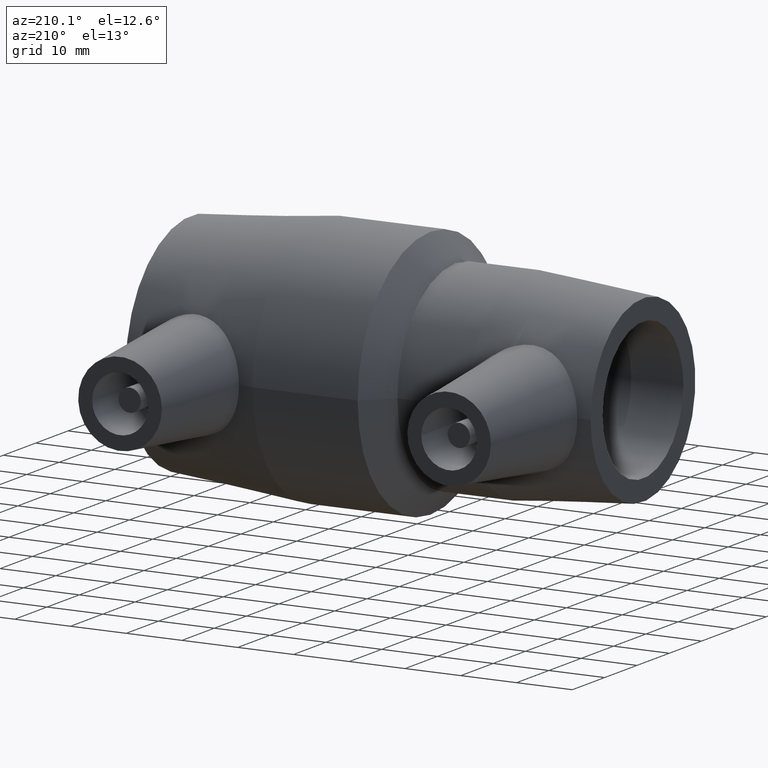
[diagram: clean part render]
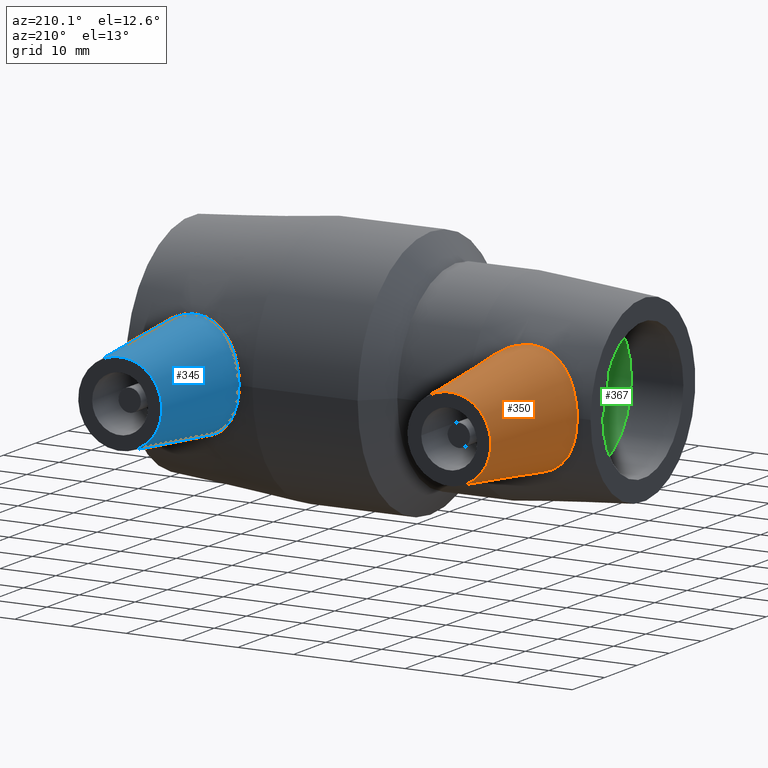
[diagram: same view with three faces highlighted in distinct colors, each labeled with its STEP entity id]
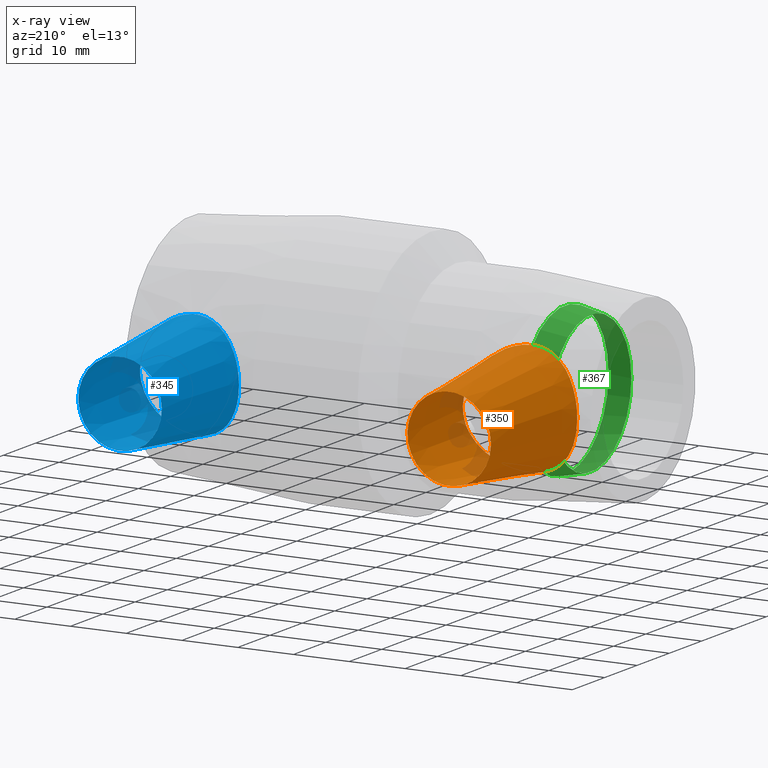
[diagram: x-ray of the same camera — body ghosted, the three highlighted faces saturated]
A machine part, auxiliary view with three faces highlighted in distinct colors.
The next image is the same camera in x-ray (body ghosted, the three faces saturated) — at least one of them is partly hidden behind the body in this view.
Their STEP definitions:

[orange] entity #350 — the highlighted conical surface has half-angle 6 deg.
#16=B_SPLINE_CURVE_WITH_KNOTS('',3,(#631,#632,#633,#634,#635,#636,#637,
#638),.UNSPECIFIED.,.F.,.F.,(4,2,2,4),(-1.20508613893983,-0.828158887300621,
-0.41407944365031,0.),.UNSPECIFIED.);
#17=B_SPLINE_CURVE_WITH_KNOTS('',3,(#640,#641,#642,#643,#644,#645,#646,
#647,#648,#649),.UNSPECIFIED.,.F.,.F.,(4,2,2,2,4),(1.20508613897965,1.22266936084449,
1.61717983438835,2.0116903079322,2.02927352979704),.UNSPECIFIED.);
#18=B_SPLINE_CURVE_WITH_KNOTS('',3,(#650,#651,#652,#653,#654,#655,#656,
#657,#658,#659,#660,#661,#662,#663,#664,#665,#666,#667,#668,#669,#670,#671,
#672,#673,#674,#675,#676,#677),.UNSPECIFIED.,.F.,.F.,(4,2,2,2,2,2,2,2,2,
2,2,2,2,4),(0.,0.184922280203359,0.369844560406719,0.739689120813437,1.11152690594763,
1.48336469108183,1.85520247621602,2.22704026135021,2.59688482175693,2.78180710196029,
2.96672938216365,3.38080882581396,3.79488826946427,4.17181552114325),
 .UNSPECIFIED.);
#20=CONICAL_SURFACE('',#394,7.5,6.);
#37=FACE_BOUND('',#122,.T.);
#80=FACE_OUTER_BOUND('',#121,.T.);
#121=EDGE_LOOP('',(#279));
#122=EDGE_LOOP('',(#280,#281,#282));
#172=CIRCLE('',#393,7.5);
#203=VERTEX_POINT('',#626);
#204=VERTEX_POINT('',#629);
#205=VERTEX_POINT('',#630);
#206=VERTEX_POINT('',#639);
#235=EDGE_CURVE('',#203,#203,#172,.T.);
#236=EDGE_CURVE('',#204,#205,#16,.T.);
#237=EDGE_CURVE('',#204,#206,#17,.T.);
#238=EDGE_CURVE('',#205,#206,#18,.T.);
#279=ORIENTED_EDGE('',*,*,#235,.T.);
#280=ORIENTED_EDGE('',*,*,#236,.F.);
#281=ORIENTED_EDGE('',*,*,#237,.T.);
#282=ORIENTED_EDGE('',*,*,#238,.F.);
#350=ADVANCED_FACE('',(#80,#37),#20,.T.);
#393=AXIS2_PLACEMENT_3D('',#627,#477,#478);
#394=AXIS2_PLACEMENT_3D('',#628,#479,#480);
#477=DIRECTION('center_axis',(0.,-1.,0.));
#478=DIRECTION('ref_axis',(1.,0.,0.));
#479=DIRECTION('center_axis',(0.,-1.,0.));
#480=DIRECTION('ref_axis',(1.,0.,0.));
#626=CARTESIAN_POINT('',(-35.85,39.,9.18485099360515E-16));
#627=CARTESIAN_POINT('Origin',(-28.35,39.,0.));
#628=CARTESIAN_POINT('Origin',(-28.35,39.,0.));
#629=CARTESIAN_POINT('',(-19.4999999999998,17.5248670279939,4.10841035573772));
#630=CARTESIAN_POINT('',(-28.9346274519194,13.8957836693557,10.1216895157762));
#631=CARTESIAN_POINT('Ctrl Pts',(-19.4999999999998,17.5248670279939,4.10841035573772));
#632=CARTESIAN_POINT('Ctrl Pts',(-20.0113032148422,17.2027997496098,5.29021012502884));
#633=CARTESIAN_POINT('Ctrl Pts',(-20.7438394017515,16.7560419521752,6.3488513312891));
#634=CARTESIAN_POINT('Ctrl Pts',(-22.4667457270617,15.8181165326031,8.11067382559636));
#635=CARTESIAN_POINT('Ctrl Pts',(-23.6067681733767,15.2516868985646,8.905522102556));
#636=CARTESIAN_POINT('Ctrl Pts',(-26.1503933843825,14.3304224070003,9.94552341413087));
#637=CARTESIAN_POINT('Ctrl Pts',(-27.5594052315259,13.9910632793358,10.1910911884238));
#638=CARTESIAN_POINT('Ctrl Pts',(-28.9346274519194,13.8957836693558,10.1216895157762));
#639=CARTESIAN_POINT('',(-19.4999999999998,17.5248670279939,-4.10841035573769));
#640=CARTESIAN_POINT('Ctrl Pts',(-19.4999999999998,17.5248670279939,4.10841035573772));
#641=CARTESIAN_POINT('Ctrl Pts',(-19.4761482942774,17.539891095365,4.05328075846208));
#642=CARTESIAN_POINT('Ctrl Pts',(-19.4527586338082,17.5546554690463,3.99789469175653));
#643=CARTESIAN_POINT('Ctrl Pts',(-18.9155962863665,17.8943902632744,2.69412405183218));
#644=CARTESIAN_POINT('Ctrl Pts',(-18.6504644693307,18.0728173312002,1.31503491181285));
#645=CARTESIAN_POINT('Ctrl Pts',(-18.6504644693307,18.0728173312002,-1.31503491181285));
#646=CARTESIAN_POINT('Ctrl Pts',(-18.9155962863665,17.8943902632744,-2.69412405183218));
#647=CARTESIAN_POINT('Ctrl Pts',(-19.4527586338082,17.5546554690463,-3.99789469175652));
#648=CARTESIAN_POINT('Ctrl Pts',(-19.4761482942774,17.539891095365,-4.05328075846206));
#649=CARTESIAN_POINT('Ctrl Pts',(-19.4999999999998,17.5248670279939,-4.10841035573769));
#650=CARTESIAN_POINT('Ctrl Pts',(-28.9346274519194,13.8957836693558,10.1216895157762));
#651=CARTESIAN_POINT('Ctrl Pts',(-29.5487830992986,13.8532330839438,10.0906956672461));
#652=CARTESIAN_POINT('Ctrl Pts',(-30.175940607223,13.8553959521025,9.99734311127611));
#653=CARTESIAN_POINT('Ctrl Pts',(-31.4080271085478,13.9496561313279,9.68134930795406));
#654=CARTESIAN_POINT('Ctrl Pts',(-32.0130152767465,14.0413585172837,9.45882111921406));
#655=CARTESIAN_POINT('Ctrl Pts',(-33.7338262792664,14.4078121514595,8.62223666664153));
#656=CARTESIAN_POINT('Ctrl Pts',(-34.7557667319442,14.771660454981,7.82998782160312));
#657=CARTESIAN_POINT('Ctrl Pts',(-36.3593899681928,15.431506581552,6.06784800442934));
#658=CARTESIAN_POINT('Ctrl Pts',(-37.0579677593027,15.7776926258145,4.96625058698677));
#659=CARTESIAN_POINT('Ctrl Pts',(-37.9919068033963,16.2618530085602,2.5528133989328));
#660=CARTESIAN_POINT('Ctrl Pts',(-38.2258892493699,16.3949237786254,1.23945928378065));
#661=CARTESIAN_POINT('Ctrl Pts',(-38.2258892493699,16.3949237786254,-1.23945928378065));
#662=CARTESIAN_POINT('Ctrl Pts',(-37.9919068033963,16.2618530085602,-2.5528133989328));
#663=CARTESIAN_POINT('Ctrl Pts',(-37.0579677593027,15.7776926258145,-4.96625058698676));
#664=CARTESIAN_POINT('Ctrl Pts',(-36.3593899681928,15.431506581552,-6.06784800442933));
#665=CARTESIAN_POINT('Ctrl Pts',(-34.7557667319442,14.771660454981,-7.82998782160312));
#666=CARTESIAN_POINT('Ctrl Pts',(-33.7338262792664,14.4078121514595,-8.62223666664153));
#667=CARTESIAN_POINT('Ctrl Pts',(-32.0130152767465,14.0413585172837,-9.45882111921405));
#668=CARTESIAN_POINT('Ctrl Pts',(-31.4080271085478,13.9496561313279,-9.68134930795406));
#669=CARTESIAN_POINT('Ctrl Pts',(-30.175940607223,13.8553959521025,-9.99734311127611));
#670=CARTESIAN_POINT('Ctrl Pts',(-29.5487830992986,13.8532330839438,-10.0906956672461));
#671=CARTESIAN_POINT('Ctrl Pts',(-27.5594052315259,13.9910632793358,-10.1910911884238));
#672=CARTESIAN_POINT('Ctrl Pts',(-26.1503933843825,14.3304224070003,-9.94552341413088));
#673=CARTESIAN_POINT('Ctrl Pts',(-23.6067681733767,15.2516868985646,-8.905522102556));
#674=CARTESIAN_POINT('Ctrl Pts',(-22.4667457270617,15.8181165326031,-8.11067382559636));
#675=CARTESIAN_POINT('Ctrl Pts',(-20.7438394016649,16.7560419522223,-6.34885133120051));
#676=CARTESIAN_POINT('Ctrl Pts',(-20.0113032159252,17.2027997489276,-5.29021012753199));
#677=CARTESIAN_POINT('Ctrl Pts',(-19.4999999999998,17.5248670279939,-4.10841035573769));

[blue] entity #345 — the highlighted conical surface has half-angle 5 deg.
#15=B_SPLINE_CURVE_WITH_KNOTS('',3,(#582,#583,#584,#585,#586,#587,#588,
#589,#590,#591,#592,#593,#594,#595,#596,#597,#598,#599,#600,#601,#602,#603,
#604,#605,#606,#607,#608,#609,#610,#611,#612,#613,#614,#615),
 .UNSPECIFIED.,.T.,.F.,(4,2,2,2,2,2,2,2,2,2,2,2,2,2,2,2,4),(0.,0.34921942886864,
0.69843885773728,1.05091588637607,1.40339291501485,1.75586994365364,2.10834697229243,
2.45756640116107,2.80678583002971,3.18980122872234,3.57281662741497,3.9445500905456,
4.31628355367624,4.68801701680687,5.0597504799375,5.44276587863013,5.82578127732276),
 .UNSPECIFIED.);
#19=CONICAL_SURFACE('',#385,7.5,5.);
#32=FACE_BOUND('',#112,.T.);
#75=FACE_OUTER_BOUND('',#111,.T.);
#111=EDGE_LOOP('',(#269));
#112=EDGE_LOOP('',(#270));
#168=CIRCLE('',#384,7.5);
#198=VERTEX_POINT('',#578);
#199=VERTEX_POINT('',#581);
#230=EDGE_CURVE('',#198,#198,#168,.T.);
#231=EDGE_CURVE('',#199,#199,#15,.T.);
#269=ORIENTED_EDGE('',*,*,#230,.T.);
#270=ORIENTED_EDGE('',*,*,#231,.F.);
#345=ADVANCED_FACE('',(#75,#32),#19,.T.);
#384=AXIS2_PLACEMENT_3D('',#579,#459,#460);
#385=AXIS2_PLACEMENT_3D('',#580,#461,#462);
#459=DIRECTION('center_axis',(0.,-1.,0.));
#460=DIRECTION('ref_axis',(1.,0.,0.));
#461=DIRECTION('center_axis',(0.,-1.,0.));
#462=DIRECTION('ref_axis',(1.,0.,0.));
#578=CARTESIAN_POINT('',(20.85,43.,9.18485099360515E-16));
#579=CARTESIAN_POINT('Origin',(28.35,43.,0.));
#580=CARTESIAN_POINT('Origin',(28.35,43.,0.));
#581=CARTESIAN_POINT('',(28.8235486545234,19.0732069146046,-9.58162829181871));
#582=CARTESIAN_POINT('Ctrl Pts',(28.8235486545235,19.0732069146047,-9.58162829181871));
#583=CARTESIAN_POINT('Ctrl Pts',(29.9825313738118,18.976115111369,-9.53285319212247));
#584=CARTESIAN_POINT('Ctrl Pts',(31.2063358528912,18.9967291644831,-9.24682536761442));
#585=CARTESIAN_POINT('Ctrl Pts',(33.4291365827659,19.2396148456838,-8.21323818325407));
#586=CARTESIAN_POINT('Ctrl Pts',(34.4294556444271,19.4531069172057,-7.46647970827992));
#587=CARTESIAN_POINT('Ctrl Pts',(36.0032297338311,19.864280257009,-5.7856949626841));
#588=CARTESIAN_POINT('Ctrl Pts',(36.6860853312904,20.0910025325791,-4.73022657038478));
#589=CARTESIAN_POINT('Ctrl Pts',(37.5939583517543,20.4117809913599,-2.42526711871709));
#590=CARTESIAN_POINT('Ctrl Pts',(37.8183722173292,20.5014026046254,-1.17492342879596));
#591=CARTESIAN_POINT('Ctrl Pts',(37.8183722173292,20.5014026046254,1.17492342879596));
#592=CARTESIAN_POINT('Ctrl Pts',(37.5939583517543,20.4117809913599,2.42526711871709));
#593=CARTESIAN_POINT('Ctrl Pts',(36.6860853312904,20.0910025325791,4.73022657038478));
#594=CARTESIAN_POINT('Ctrl Pts',(36.0032297338311,19.864280257009,5.7856949626841));
#595=CARTESIAN_POINT('Ctrl Pts',(34.4294556444271,19.4531069172057,7.46647970827992));
#596=CARTESIAN_POINT('Ctrl Pts',(33.4291365827659,19.2396148456838,8.21323818325407));
#597=CARTESIAN_POINT('Ctrl Pts',(31.2063358528912,18.9967291644831,9.24682536761442));
#598=CARTESIAN_POINT('Ctrl Pts',(29.9825313738118,18.976115111369,9.53285319212247));
#599=CARTESIAN_POINT('Ctrl Pts',(27.5524045210364,19.1796948492725,9.63512363804544));
#600=CARTESIAN_POINT('Ctrl Pts',(26.2221646987138,19.4374240495489,9.41229869964287));
#601=CARTESIAN_POINT('Ctrl Pts',(23.8023532209335,20.1235590168762,8.44355803872945));
#602=CARTESIAN_POINT('Ctrl Pts',(22.7099040736524,20.5427639567287,7.69833737638453));
#603=CARTESIAN_POINT('Ctrl Pts',(21.0092747943259,21.267998571969,5.9920861995273));
#604=CARTESIAN_POINT('Ctrl Pts',(20.2735656696187,21.6264979911721,4.92151343005924));
#605=CARTESIAN_POINT('Ctrl Pts',(19.2861986874747,22.1258780867772,2.54573329136532));
#606=CARTESIAN_POINT('Ctrl Pts',(19.0356845552626,22.2622795729441,1.23911154376878));
#607=CARTESIAN_POINT('Ctrl Pts',(19.0356845552626,22.2622795729441,-1.23911154376878));
#608=CARTESIAN_POINT('Ctrl Pts',(19.2861986874747,22.1258780867772,-2.54573329136531));
#609=CARTESIAN_POINT('Ctrl Pts',(20.2735656696187,21.6264979911721,-4.92151343005923));
#610=CARTESIAN_POINT('Ctrl Pts',(21.0092747943259,21.267998571969,-5.99208619952729));
#611=CARTESIAN_POINT('Ctrl Pts',(22.7099040736524,20.5427639567287,-7.69833737638453));
#612=CARTESIAN_POINT('Ctrl Pts',(23.8023532209335,20.1235590168762,-8.44355803872945));
#613=CARTESIAN_POINT('Ctrl Pts',(26.2221646987138,19.4374240495489,-9.41229869964287));
#614=CARTESIAN_POINT('Ctrl Pts',(27.5524045210364,19.1796948492725,-9.63512363804544));
#615=CARTESIAN_POINT('Ctrl Pts',(28.8235486545235,19.0732069146047,-9.58162829181871));

[green] entity #367 — the highlighted conical surface has half-angle 12 deg.
#26=CONICAL_SURFACE('',#428,12.9959653105634,12.);
#54=FACE_BOUND('',#156,.T.);
#97=FACE_OUTER_BOUND('',#155,.T.);
#155=EDGE_LOOP('',(#317));
#156=EDGE_LOOP('',(#318));
#189=CIRCLE('',#427,13.4919306211268);
#190=CIRCLE('',#429,12.5);
#221=VERTEX_POINT('',#724);
#222=VERTEX_POINT('',#727);
#255=EDGE_CURVE('',#221,#221,#189,.T.);
#256=EDGE_CURVE('',#222,#222,#190,.T.);
#317=ORIENTED_EDGE('',*,*,#256,.F.);
#318=ORIENTED_EDGE('',*,*,#255,.T.);
#367=ADVANCED_FACE('',(#97,#54),#26,.F.);
#427=AXIS2_PLACEMENT_3D('',#725,#545,#546);
#428=AXIS2_PLACEMENT_3D('',#726,#547,#548);
#429=AXIS2_PLACEMENT_3D('',#728,#549,#550);
#545=DIRECTION('center_axis',(1.,1.83697019872103E-16,0.));
#546=DIRECTION('ref_axis',(0.,0.,-1.));
#547=DIRECTION('center_axis',(1.,1.83697019872103E-16,0.));
#548=DIRECTION('ref_axis',(-1.96131485542617E-16,1.,0.));
#549=DIRECTION('center_axis',(1.,1.83697019872103E-16,0.));
#550=DIRECTION('ref_axis',(0.,0.,-1.));
#724=CARTESIAN_POINT('',(-26.5,13.4919306211268,0.));
#725=CARTESIAN_POINT('Origin',(-26.5,2.57175827820944E-15,0.));
#726=CARTESIAN_POINT('Origin',(-28.8333333333333,2.14313189850787E-15,0.));
#727=CARTESIAN_POINT('',(-31.1666666666667,12.5,0.));
#728=CARTESIAN_POINT('Origin',(-31.1666666666667,1.71450551880629E-15,0.));